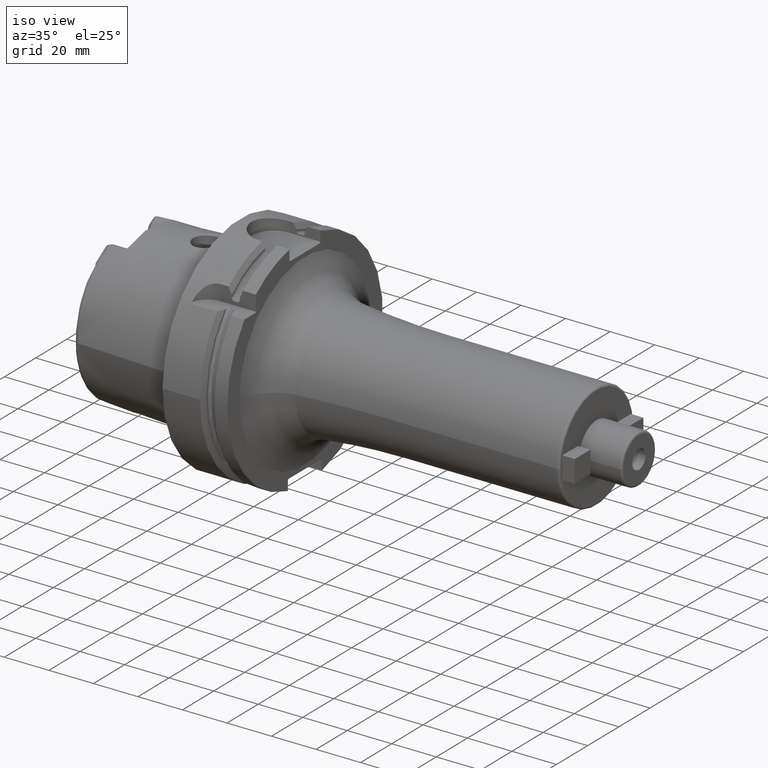
[diagram: clean part render]
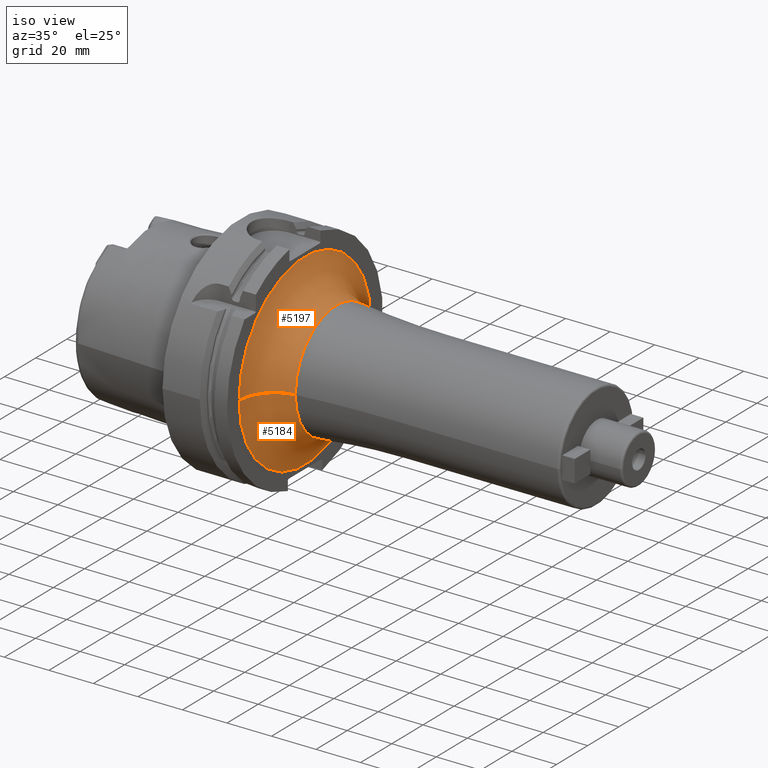
[diagram: same view with one multi-face feature highlighted, each face labeled with its STEP entity id]
A machine part, iso view. The highlighted faces form ONE feature: a constant-radius fillet chain: 2 tangent blend faces with common blend radius 16 mm. The faces share edges in the B-rep.
Their STEP definitions:
[1] entity #5184 (Torus):
#1091=CARTESIAN_POINT('',(2.9E1,0.E0,0.E0));
#1092=DIRECTION('',(1.E0,0.E0,0.E0));
#1093=DIRECTION('',(0.E0,-1.E0,0.E0));
#1094=AXIS2_PLACEMENT_3D('',#1091,#1092,#1093);
#1810=CARTESIAN_POINT('',(4.5E1,-4.228476067567E1,3.100297796266E-13));
#1811=DIRECTION('',(0.E0,0.E0,-1.E0));
#1812=DIRECTION('',(-1.E0,0.E0,0.E0));
#1813=AXIS2_PLACEMENT_3D('',#1810,#1811,#1812);
#1815=CARTESIAN_POINT('',(4.5E1,4.228476067567E1,-3.160804951108E-13));
#1816=DIRECTION('',(0.E0,0.E0,1.E0));
#1817=DIRECTION('',(-1.E0,0.E0,0.E0));
#1818=AXIS2_PLACEMENT_3D('',#1815,#1816,#1817);
#1825=CARTESIAN_POINT('',(4.313173652695E1,0.E0,0.E0));
#1826=DIRECTION('',(1.E0,0.E0,0.E0));
#1827=DIRECTION('',(0.E0,-1.E0,0.E0));
#1828=AXIS2_PLACEMENT_3D('',#1825,#1826,#1827);
#3345=CARTESIAN_POINT('',(2.9E1,-4.228476067567E1,3.879249384719E-13));
#3346=CARTESIAN_POINT('',(2.9E1,4.228476067567E1,-3.931033281533E-13));
#3347=VERTEX_POINT('',#3345);
#3348=VERTEX_POINT('',#3346);
#3349=CARTESIAN_POINT('',(4.313173652695E1,-2.639421028887E1,0.E0));
#3350=CARTESIAN_POINT('',(4.313173652695E1,2.639421028887E1,0.E0));
#3351=VERTEX_POINT('',#3349);
#3352=VERTEX_POINT('',#3350);
#5170=CARTESIAN_POINT('',(4.5E1,0.E0,0.E0));
#5171=DIRECTION('',(1.E0,0.E0,0.E0));
#5172=DIRECTION('',(0.E0,-9.999953045017E-1,3.064469712168E-3));
#5173=AXIS2_PLACEMENT_3D('',#5170,#5171,#5172);
#5174=TOROIDAL_SURFACE('',#5173,4.228476067567E1,1.6E1);
#5175=ORIENTED_EDGE('',*,*,#4450,.F.);
#5177=ORIENTED_EDGE('',*,*,#5176,.T.);
#5179=ORIENTED_EDGE('',*,*,#5178,.T.);
#5181=ORIENTED_EDGE('',*,*,#5180,.F.);
#5182=EDGE_LOOP('',(#5175,#5177,#5179,#5181));
#5183=FACE_OUTER_BOUND('',#5182,.F.);
#5184=ADVANCED_FACE('',(#5183),#5174,.F.);
#1095=CIRCLE('',#1094,4.228476067567E1);
#1814=CIRCLE('',#1813,1.6E1);
#1819=CIRCLE('',#1818,1.6E1);
#1829=CIRCLE('',#1828,2.639421028887E1);
#4450=EDGE_CURVE('',#3347,#3348,#1095,.T.);
#5176=EDGE_CURVE('',#3347,#3351,#1814,.T.);
#5178=EDGE_CURVE('',#3351,#3352,#1829,.T.);
#5180=EDGE_CURVE('',#3348,#3352,#1819,.T.);
[2] entity #5197 (Torus):
#1096=CARTESIAN_POINT('',(2.9E1,0.E0,0.E0));
#1097=DIRECTION('',(1.E0,0.E0,0.E0));
#1098=DIRECTION('',(0.E0,1.E0,0.E0));
#1099=AXIS2_PLACEMENT_3D('',#1096,#1097,#1098);
#1810=CARTESIAN_POINT('',(4.5E1,-4.228476067567E1,3.100297796266E-13));
#1811=DIRECTION('',(0.E0,0.E0,-1.E0));
#1812=DIRECTION('',(-1.E0,0.E0,0.E0));
#1813=AXIS2_PLACEMENT_3D('',#1810,#1811,#1812);
#1815=CARTESIAN_POINT('',(4.5E1,4.228476067567E1,-3.160804951108E-13));
#1816=DIRECTION('',(0.E0,0.E0,1.E0));
#1817=DIRECTION('',(-1.E0,0.E0,0.E0));
#1818=AXIS2_PLACEMENT_3D('',#1815,#1816,#1817);
#1820=CARTESIAN_POINT('',(4.313173652695E1,0.E0,0.E0));
#1821=DIRECTION('',(1.E0,0.E0,0.E0));
#1822=DIRECTION('',(0.E0,1.E0,0.E0));
#1823=AXIS2_PLACEMENT_3D('',#1820,#1821,#1822);
#3345=CARTESIAN_POINT('',(2.9E1,-4.228476067567E1,3.879249384719E-13));
#3346=CARTESIAN_POINT('',(2.9E1,4.228476067567E1,-3.931033281533E-13));
#3347=VERTEX_POINT('',#3345);
#3348=VERTEX_POINT('',#3346);
#3349=CARTESIAN_POINT('',(4.313173652695E1,-2.639421028887E1,0.E0));
#3350=CARTESIAN_POINT('',(4.313173652695E1,2.639421028887E1,0.E0));
#3351=VERTEX_POINT('',#3349);
#3352=VERTEX_POINT('',#3350);
#5185=CARTESIAN_POINT('',(4.5E1,0.E0,0.E0));
#5186=DIRECTION('',(1.E0,0.E0,0.E0));
#5187=DIRECTION('',(0.E0,9.999953045017E-1,-3.064469712168E-3));
#5188=AXIS2_PLACEMENT_3D('',#5185,#5186,#5187);
#5189=TOROIDAL_SURFACE('',#5188,4.228476067567E1,1.6E1);
#5190=ORIENTED_EDGE('',*,*,#4452,.F.);
#5191=ORIENTED_EDGE('',*,*,#5180,.T.);
#5193=ORIENTED_EDGE('',*,*,#5192,.T.);
#5194=ORIENTED_EDGE('',*,*,#5176,.F.);
#5195=EDGE_LOOP('',(#5190,#5191,#5193,#5194));
#5196=FACE_OUTER_BOUND('',#5195,.F.);
#5197=ADVANCED_FACE('',(#5196),#5189,.F.);
#1100=CIRCLE('',#1099,4.228476067567E1);
#1814=CIRCLE('',#1813,1.6E1);
#1819=CIRCLE('',#1818,1.6E1);
#1824=CIRCLE('',#1823,2.639421028887E1);
#4452=EDGE_CURVE('',#3348,#3347,#1100,.T.);
#5176=EDGE_CURVE('',#3347,#3351,#1814,.T.);
#5180=EDGE_CURVE('',#3348,#3352,#1819,.T.);
#5192=EDGE_CURVE('',#3352,#3351,#1824,.T.);